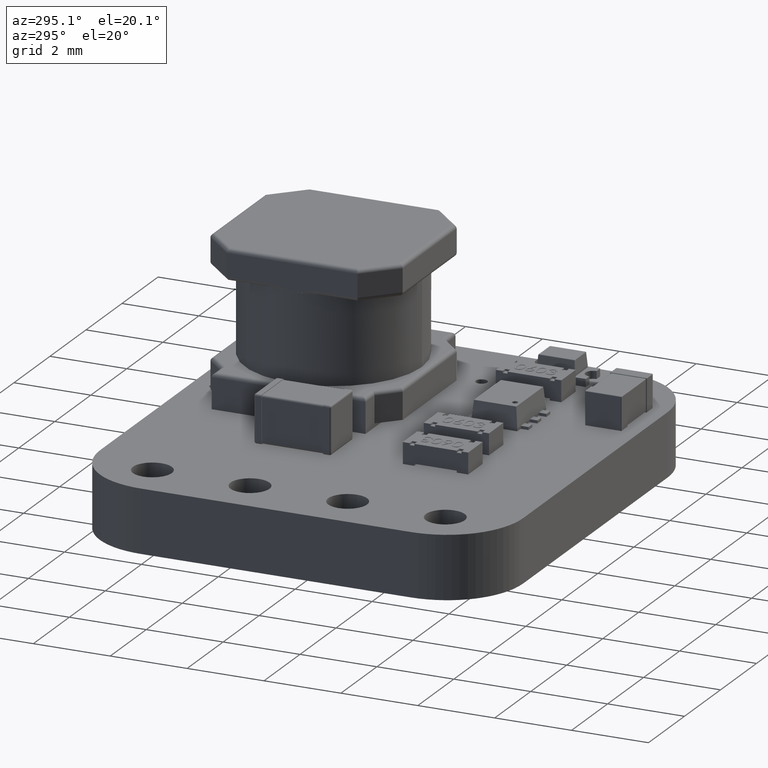
[diagram: clean part render]
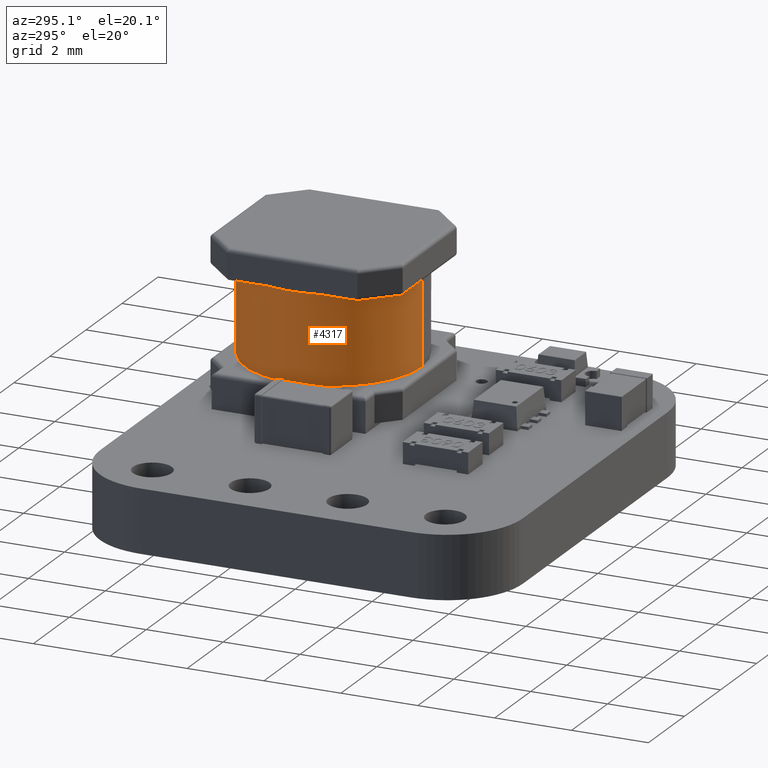
[diagram: same view with one face highlighted and labeled with its STEP entity id]
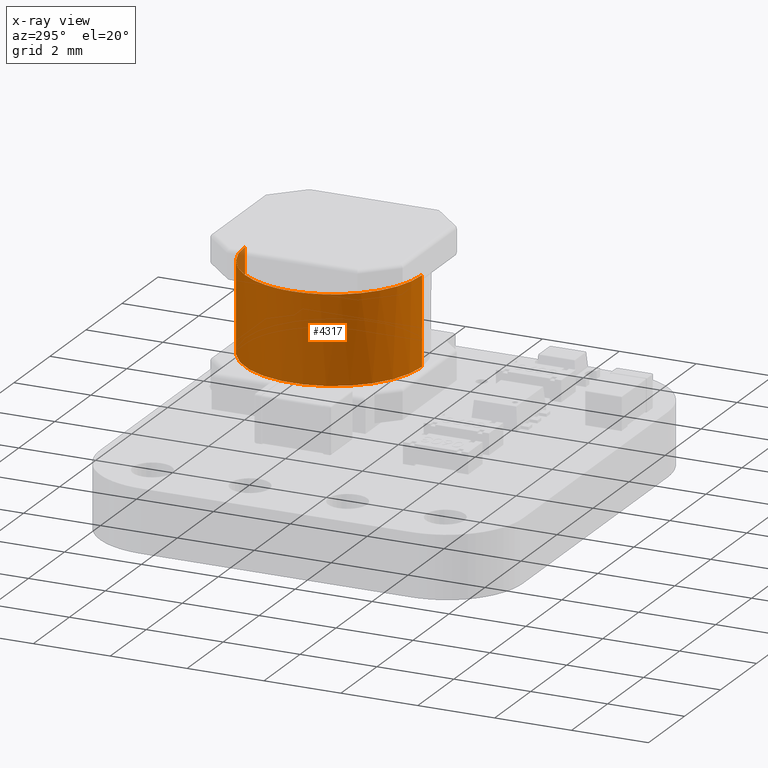
[diagram: x-ray of the same camera — body ghosted, the highlighted face saturated]
A machine part, auxiliary view. The second image highlights one B-rep face of the part: STEP entity #4317.
The next image is the same camera in x-ray: the body ghosted, the highlighted face saturated — about 1% of this face is hidden behind the body in this view.
In plain terms, the highlighted cylindrical surface (partial cylindrical patch) has radius 2.3 mm, axis along (0, -0, -1).
Its self-contained STEP definition (entity closure, byte-faithful):
#4317 = ADVANCED_FACE('',(#4318),#4381,.T.);
#4318 = FACE_BOUND('',#4319,.T.);
#4319 = EDGE_LOOP('',(#4320,#4331,#4339,#4348,#4356,#4365,#4374));
#4320 = ORIENTED_EDGE('',*,*,#4321,.T.);
#4321 = EDGE_CURVE('',#4322,#4324,#4326,.T.);
#4322 = VERTEX_POINT('',#4323);
#4323 = CARTESIAN_POINT('',(2.2,3.199999999993,0.67082039325));
#4324 = VERTEX_POINT('',#4325);
#4325 = CARTESIAN_POINT('',(2.816687638039E-16,3.199999999993,2.3));
#4326 = CIRCLE('',#4327,2.3);
#4327 = AXIS2_PLACEMENT_3D('',#4328,#4329,#4330);
#4328 = CARTESIAN_POINT('',(0.,3.199999999993,0.));
#4329 = DIRECTION('',(0.,-1.,0.));
#4330 = DIRECTION('',(0.,0.,-1.));
#4331 = ORIENTED_EDGE('',*,*,#4332,.T.);
#4332 = EDGE_CURVE('',#4324,#4333,#4335,.T.);
#4333 = VERTEX_POINT('',#4334);
#4334 = CARTESIAN_POINT('',(2.816687638039E-16,0.900000000001,2.3));
#4335 = LINE('',#4336,#4337);
#4336 = CARTESIAN_POINT('',(2.816687638039E-16,5.E+05,2.3));
#4337 = VECTOR('',#4338,1.);
#4338 = DIRECTION('',(-0.,-1.,-0.));
#4339 = ORIENTED_EDGE('',*,*,#4340,.T.);
#4340 = EDGE_CURVE('',#4333,#4341,#4343,.T.);
#4341 = VERTEX_POINT('',#4342);
#4342 = CARTESIAN_POINT('',(0.,0.900000000001,-2.3));
#4343 = CIRCLE('',#4344,2.3);
#4344 = AXIS2_PLACEMENT_3D('',#4345,#4346,#4347);
#4345 = CARTESIAN_POINT('',(0.,0.900000000001,0.));
#4346 = DIRECTION('',(0.,1.,-0.));
#4347 = DIRECTION('',(0.,0.,1.));
#4348 = ORIENTED_EDGE('',*,*,#4349,.F.);
#4349 = EDGE_CURVE('',#4350,#4341,#4352,.T.);
#4350 = VERTEX_POINT('',#4351);
#4351 = CARTESIAN_POINT('',(0.,3.199999999993,-2.3));
#4352 = LINE('',#4353,#4354);
#4353 = CARTESIAN_POINT('',(0.,5.E+05,-2.3));
#4354 = VECTOR('',#4355,1.);
#4355 = DIRECTION('',(-0.,-1.,-0.));
#4356 = ORIENTED_EDGE('',*,*,#4357,.T.);
#4357 = EDGE_CURVE('',#4350,#4358,#4360,.T.);
#4358 = VERTEX_POINT('',#4359);
#4359 = CARTESIAN_POINT('',(2.2,3.199999999993,-0.67082039325));
#4360 = CIRCLE('',#4361,2.3);
#4361 = AXIS2_PLACEMENT_3D('',#4362,#4363,#4364);
#4362 = CARTESIAN_POINT('',(0.,3.199999999993,0.));
#4363 = DIRECTION('',(0.,-1.,0.));
#4364 = DIRECTION('',(0.,0.,-1.));
#4365 = ORIENTED_EDGE('',*,*,#4366,.T.);
#4366 = EDGE_CURVE('',#4358,#4367,#4369,.T.);
#4367 = VERTEX_POINT('',#4368);
#4368 = CARTESIAN_POINT('',(2.3,3.199999999993,-2.933723525549E-16));
#4369 = CIRCLE('',#4370,2.3);
#4370 = AXIS2_PLACEMENT_3D('',#4371,#4372,#4373);
#4371 = CARTESIAN_POINT('',(0.,3.199999999993,0.));
#4372 = DIRECTION('',(0.,-1.,0.));
#4373 = DIRECTION('',(0.,0.,-1.));
#4374 = ORIENTED_EDGE('',*,*,#4375,.T.);
#4375 = EDGE_CURVE('',#4367,#4322,#4376,.T.);
#4376 = CIRCLE('',#4377,2.3);
#4377 = AXIS2_PLACEMENT_3D('',#4378,#4379,#4380);
#4378 = CARTESIAN_POINT('',(0.,3.199999999993,0.));
#4379 = DIRECTION('',(0.,-1.,0.));
#4380 = DIRECTION('',(0.,0.,-1.));
#4381 = CYLINDRICAL_SURFACE('',#4382,2.3);
#4382 = AXIS2_PLACEMENT_3D('',#4383,#4384,#4385);
#4383 = CARTESIAN_POINT('',(0.,5.E+05,0.));
#4384 = DIRECTION('',(-0.,-1.,-0.));
#4385 = DIRECTION('',(0.,0.,-1.));